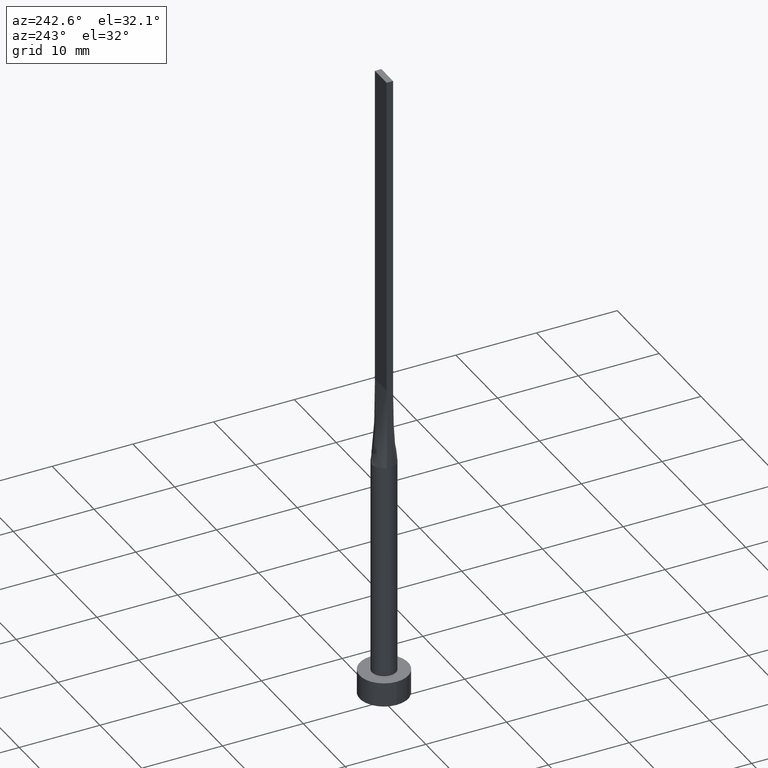
[diagram: clean part render]
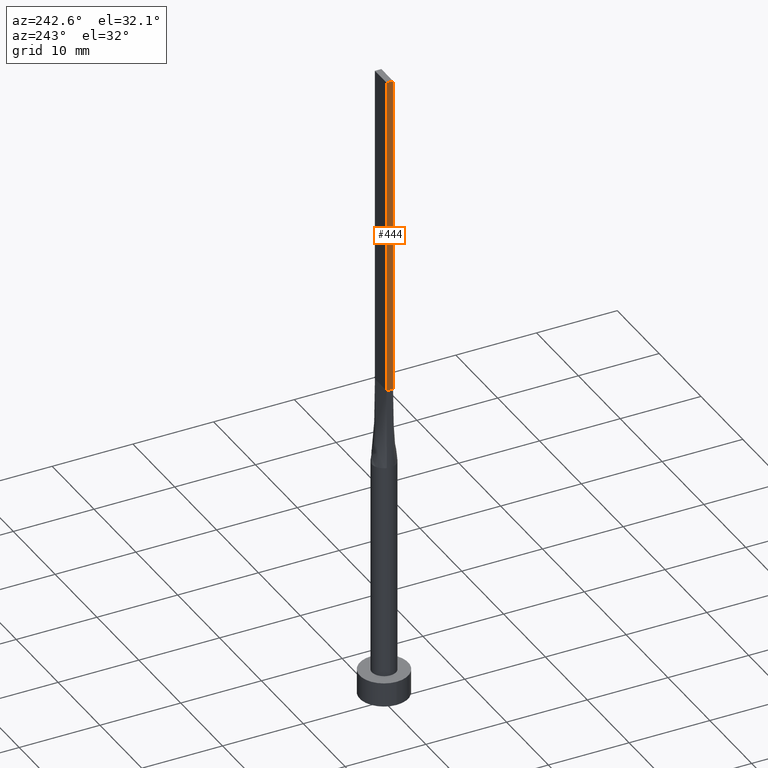
[diagram: same view with one face highlighted and labeled with its STEP entity id]
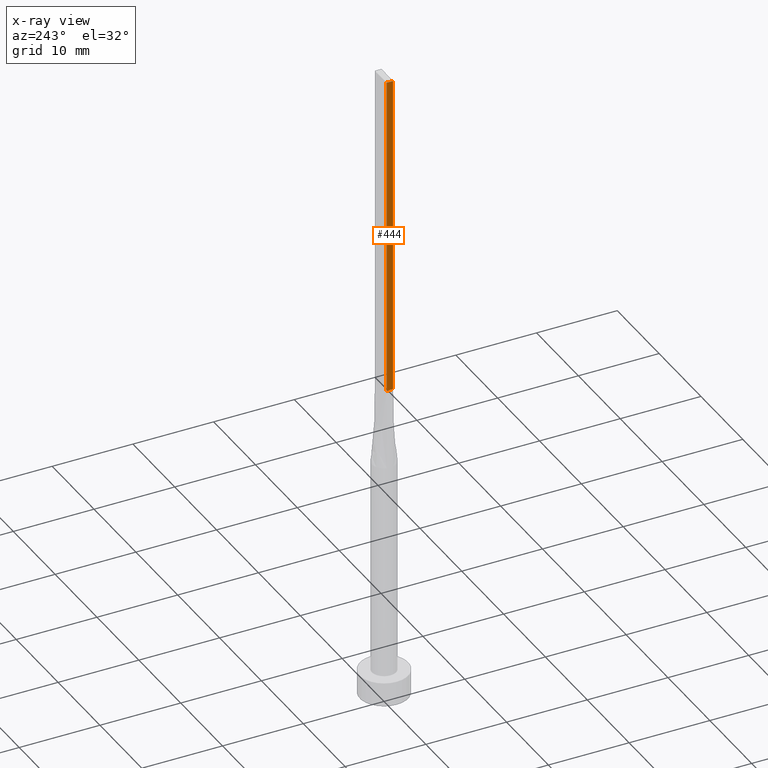
[diagram: x-ray of the same camera — body ghosted, the highlighted face saturated]
A machine part, auxiliary view. The second image highlights one B-rep face of the part: STEP entity #444.
The next image is the same camera in x-ray: the body ghosted, the highlighted face saturated — about 0% of this face is hidden behind the body in this view.
In plain terms, the highlighted planar face has unit normal (1, -0, 0).
Its self-contained STEP definition (entity closure, byte-faithful):
#6 = ORIENTED_EDGE ( 'NONE', *, *, #383, .F. ) ;
#49 = DIRECTION ( 'NONE',  ( -2.710505431213761578E-16, -1.000000000000000000, 0.000000000000000000 ) ) ;
#59 = VERTEX_POINT ( 'NONE', #252 ) ;
#88 = DIRECTION ( 'NONE',  ( -0.000000000000000000, -0.000000000000000000, -1.000000000000000000 ) ) ;
#96 = CARTESIAN_POINT ( 'NONE',  ( -1.399999999999999689, 0.4000000000000002442, 80.00000000000000000 ) ) ;
#101 = VERTEX_POINT ( 'NONE', #203 ) ;
#134 = ORIENTED_EDGE ( 'NONE', *, *, #281, .F. ) ;
#147 = VERTEX_POINT ( 'NONE', #478 ) ;
#180 = DIRECTION ( 'NONE',  ( 2.710505431213761578E-16, 1.000000000000000000, 0.000000000000000000 ) ) ;
#184 = CARTESIAN_POINT ( 'NONE',  ( -1.399999999999999689, 0.4000000000000002442, 80.00000000000000000 ) ) ;
#196 = AXIS2_PLACEMENT_3D ( 'NONE', #419, #451, #180 ) ;
#203 = CARTESIAN_POINT ( 'NONE',  ( -1.399999999999999911, -0.3999999999999996336, 80.00000000000000000 ) ) ;
#220 = CARTESIAN_POINT ( 'NONE',  ( -1.399999999999999911, -0.3999999999999996336, 80.00000000000000000 ) ) ;
#252 = CARTESIAN_POINT ( 'NONE',  ( -1.399999999999999689, 0.4000000000000002442, 80.00000000000000000 ) ) ;
#267 = LINE ( 'NONE', #446, #519 ) ;
#272 = LINE ( 'NONE', #96, #394 ) ;
#275 = LINE ( 'NONE', #220, #284 ) ;
#281 = EDGE_CURVE ( 'NONE', #101, #147, #275, .T. ) ;
#284 = VECTOR ( 'NONE', #413, 1000.000000000000000 ) ;
#287 = PLANE ( 'NONE',  #196 ) ;
#300 = EDGE_CURVE ( 'NONE', #59, #412, #540, .T. ) ;
#309 = EDGE_LOOP ( 'NONE', ( #502, #134, #6, #542 ) ) ;
#310 = EDGE_CURVE ( 'NONE', #412, #147, #267, .T. ) ;
#357 = CARTESIAN_POINT ( 'NONE',  ( -1.399999999999999689, 0.4000000000000002442, 40.00000000000000000 ) ) ;
#383 = EDGE_CURVE ( 'NONE', #59, #101, #272, .T. ) ;
#394 = VECTOR ( 'NONE', #403, 1000.000000000000000 ) ;
#403 = DIRECTION ( 'NONE',  ( -2.710505431213761578E-16, -1.000000000000000000, 0.000000000000000000 ) ) ;
#412 = VERTEX_POINT ( 'NONE', #357 ) ;
#413 = DIRECTION ( 'NONE',  ( -0.000000000000000000, -0.000000000000000000, -1.000000000000000000 ) ) ;
#419 = CARTESIAN_POINT ( 'NONE',  ( -1.399999999999999689, 0.4000000000000002442, 80.00000000000000000 ) ) ;
#444 = ADVANCED_FACE ( 'NONE', ( #490 ), #287, .F. ) ;
#446 = CARTESIAN_POINT ( 'NONE',  ( -1.399999999999999689, 0.4000000000000002442, 40.00000000000000000 ) ) ;
#451 = DIRECTION ( 'NONE',  ( 1.000000000000000000, -2.710505431213761578E-16, 0.000000000000000000 ) ) ;
#474 = VECTOR ( 'NONE', #88, 1000.000000000000000 ) ;
#478 = CARTESIAN_POINT ( 'NONE',  ( -1.399999999999999911, -0.3999999999999996336, 40.00000000000000000 ) ) ;
#490 = FACE_OUTER_BOUND ( 'NONE', #309, .T. ) ;
#502 = ORIENTED_EDGE ( 'NONE', *, *, #310, .T. ) ;
#519 = VECTOR ( 'NONE', #49, 1000.000000000000000 ) ;
#540 = LINE ( 'NONE', #184, #474 ) ;
#542 = ORIENTED_EDGE ( 'NONE', *, *, #300, .T. ) ;